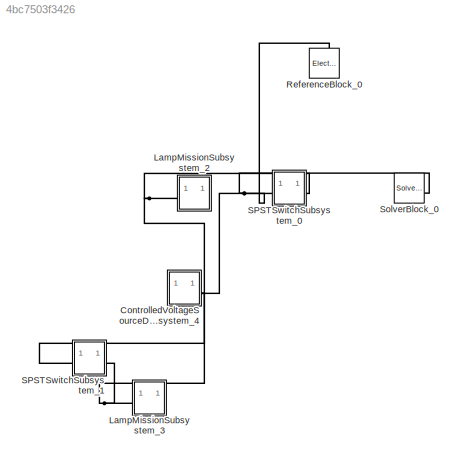
MODEL slx_4bc7503f3426
KIND model
CONFIG AbsTol = auto
CONFIG EnableMultiTasking = off
CONFIG FixedStep = auto
CONFIG MaxStep = auto
CONFIG MinStep = auto
CONFIG RelTol = 1e-3
CONFIG SampleTimeConstraint = Unconstrained
CONFIG SolverName = ode23t
CONFIG StartTime = 0.0
CONFIG StopTime = 100
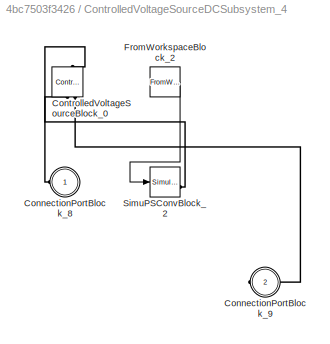
BLOCK [SubSystem] ControlledVoltageSourceDCSubsystem_4
BLOCK [PMIOPort] ControlledVoltageSourceDCSubsystem_4/ConnectionPortBlock_8
  Side = Left
BLOCK [PMIOPort] ControlledVoltageSourceDCSubsystem_4/ConnectionPortBlock_9
  Port = 2
  Side = Right
BLOCK [Reference] ControlledVoltageSourceDCSubsystem_4/ControlledVoltageSourceBlock_0  REF=fl_lib/Electrical/Electrical Sources/Controlled Voltage
Source
  NameLocation = right
  SourceBlock = fl_lib/Electrical/Electrical Sources/Controlled Voltage\nSource
  SourceType = Controlled Voltage\nSource
BLOCK [FromWorkspace] ControlledVoltageSourceDCSubsystem_4/FromWorkspaceBlock_2
  VariableName = Subsystem_4_ControlledVoltageSourceBlock_0_simin_0
BLOCK [Reference] ControlledVoltageSourceDCSubsystem_4/SimuPSConvBlock_2  REF=nesl_utility/Simulink-PS
Converter
  SourceBlock = nesl_utility/Simulink-PS\nConverter
  SourceType = Simulink-PS\nConverter
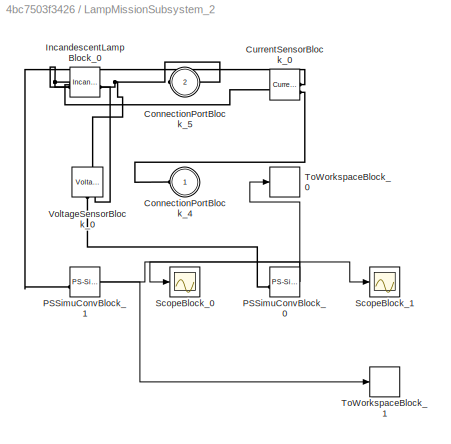
BLOCK [SubSystem] LampMissionSubsystem_2
BLOCK [PMIOPort] LampMissionSubsystem_2/ConnectionPortBlock_4
  Side = Left
BLOCK [PMIOPort] LampMissionSubsystem_2/ConnectionPortBlock_5
  Port = 2
  Side = Right
BLOCK [Reference] LampMissionSubsystem_2/CurrentSensorBlock_0  REF=fl_lib/Electrical/Electrical Sensors/Current Sensor
  LibrarySourceBlock = ee_lib/Sensors &\nTransducers/Current Sensor
  SourceBlock = fl_lib/Electrical/Electrical Sensors/Current Sensor
  SourceType = Current Sensor
BLOCK [Reference] LampMissionSubsystem_2/IncandescentLampBlock_0  REF=ee_lib/Passive/Incandescent Lamp
  SourceBlock = ee_lib/Passive/Incandescent Lamp
  SourceType = Incandescent Lamp
BLOCK [Reference] LampMissionSubsystem_2/PSSimuConvBlock_0  REF=nesl_utility/PS-Simulink
Converter
  SourceBlock = nesl_utility/PS-Simulink\nConverter
  SourceType = PS-Simulink\nConverter
BLOCK [Reference] LampMissionSubsystem_2/PSSimuConvBlock_1  REF=nesl_utility/PS-Simulink
Converter
  SourceBlock = nesl_utility/PS-Simulink\nConverter
  SourceType = PS-Simulink\nConverter
BLOCK [Scope] LampMissionSubsystem_2/ScopeBlock_0
  Floating = off
  NumInputPorts = 1
BLOCK [Scope] LampMissionSubsystem_2/ScopeBlock_1
  Floating = off
  NumInputPorts = 1
BLOCK [ToWorkspace] LampMissionSubsystem_2/ToWorkspaceBlock_0
  FixptAsFi = on
  MaxDataPoints = inf
  SaveFormat = Structure With Time
  VariableName = Subsystem_2_VoltageSensorBlock_0_simout_0
BLOCK [ToWorkspace] LampMissionSubsystem_2/ToWorkspaceBlock_1
  FixptAsFi = on
  MaxDataPoints = inf
  SaveFormat = Structure With Time
  VariableName = Subsystem_2_CurrentSensorBlock_0_simout_0
BLOCK [Reference] LampMissionSubsystem_2/VoltageSensorBlock_0  REF=fl_lib/Electrical/Electrical Sensors/Voltage Sensor
  LibrarySourceBlock = ee_lib/Sensors &\nTransducers/Voltage Sensor
  NameLocation = right
  SourceBlock = fl_lib/Electrical/Electrical Sensors/Voltage Sensor
  SourceType = Voltage Sensor
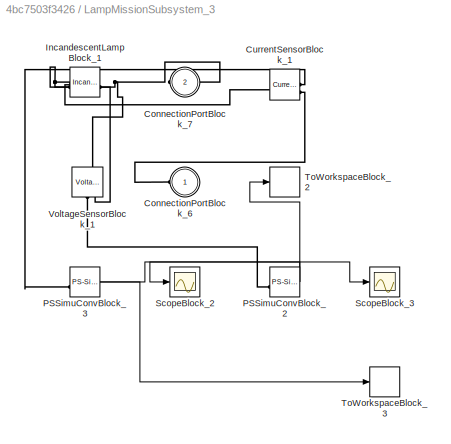
BLOCK [SubSystem] LampMissionSubsystem_3
BLOCK [PMIOPort] LampMissionSubsystem_3/ConnectionPortBlock_6
  Side = Left
BLOCK [PMIOPort] LampMissionSubsystem_3/ConnectionPortBlock_7
  Port = 2
  Side = Right
BLOCK [Reference] LampMissionSubsystem_3/CurrentSensorBlock_1  REF=fl_lib/Electrical/Electrical Sensors/Current Sensor
  LibrarySourceBlock = ee_lib/Sensors &\nTransducers/Current Sensor
  SourceBlock = fl_lib/Electrical/Electrical Sensors/Current Sensor
  SourceType = Current Sensor
BLOCK [Reference] LampMissionSubsystem_3/IncandescentLampBlock_1  REF=ee_lib/Passive/Incandescent Lamp
  SourceBlock = ee_lib/Passive/Incandescent Lamp
  SourceType = Incandescent Lamp
BLOCK [Reference] LampMissionSubsystem_3/PSSimuConvBlock_2  REF=nesl_utility/PS-Simulink
Converter
  SourceBlock = nesl_utility/PS-Simulink\nConverter
  SourceType = PS-Simulink\nConverter
BLOCK [Reference] LampMissionSubsystem_3/PSSimuConvBlock_3  REF=nesl_utility/PS-Simulink
Converter
  SourceBlock = nesl_utility/PS-Simulink\nConverter
  SourceType = PS-Simulink\nConverter
BLOCK [Scope] LampMissionSubsystem_3/ScopeBlock_2
  Floating = off
  NumInputPorts = 1
BLOCK [Scope] LampMissionSubsystem_3/ScopeBlock_3
  Floating = off
  NumInputPorts = 1
BLOCK [ToWorkspace] LampMissionSubsystem_3/ToWorkspaceBlock_2
  FixptAsFi = on
  MaxDataPoints = inf
  SaveFormat = Structure With Time
  VariableName = Subsystem_3_VoltageSensorBlock_1_simout_0
BLOCK [ToWorkspace] LampMissionSubsystem_3/ToWorkspaceBlock_3
  FixptAsFi = on
  MaxDataPoints = inf
  SaveFormat = Structure With Time
  VariableName = Subsystem_3_CurrentSensorBlock_1_simout_0
BLOCK [Reference] LampMissionSubsystem_3/VoltageSensorBlock_1  REF=fl_lib/Electrical/Electrical Sensors/Voltage Sensor
  LibrarySourceBlock = ee_lib/Sensors &\nTransducers/Voltage Sensor
  NameLocation = right
  SourceBlock = fl_lib/Electrical/Electrical Sensors/Voltage Sensor
  SourceType = Voltage Sensor
BLOCK [Reference] ReferenceBlock_0  REF=fl_lib/Electrical/Electrical Elements/Electrical Reference
  LibrarySourceBlock = ee_lib/Connectors &\nReferences/Electrical Reference
  NameLocation = right
  SourceBlock = fl_lib/Electrical/Electrical Elements/Electrical Reference
  SourceType = Electrical Reference
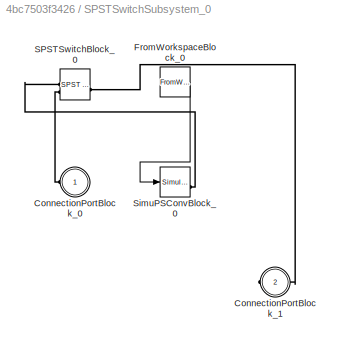
BLOCK [SubSystem] SPSTSwitchSubsystem_0
BLOCK [PMIOPort] SPSTSwitchSubsystem_0/ConnectionPortBlock_0
  Side = Left
BLOCK [PMIOPort] SPSTSwitchSubsystem_0/ConnectionPortBlock_1
  Port = 2
  Side = Right
BLOCK [FromWorkspace] SPSTSwitchSubsystem_0/FromWorkspaceBlock_0
  VariableName = Subsystem_0_SPSTSwitchBlock_0_simin_0
BLOCK [Reference] SPSTSwitchSubsystem_0/SPSTSwitchBlock_0  REF=ee_lib/Switches & Breakers/SPST Switch
  SourceBlock = ee_lib/Switches & Breakers/SPST Switch
  SourceType = SPST Switch
BLOCK [Reference] SPSTSwitchSubsystem_0/SimuPSConvBlock_0  REF=nesl_utility/Simulink-PS
Converter
  SourceBlock = nesl_utility/Simulink-PS\nConverter
  SourceType = Simulink-PS\nConverter
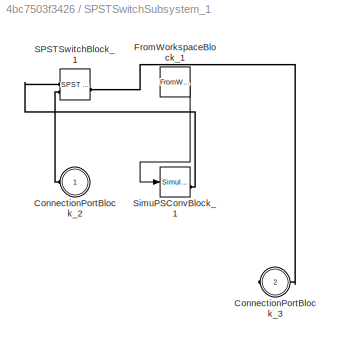
BLOCK [SubSystem] SPSTSwitchSubsystem_1
BLOCK [PMIOPort] SPSTSwitchSubsystem_1/ConnectionPortBlock_2
  Side = Left
BLOCK [PMIOPort] SPSTSwitchSubsystem_1/ConnectionPortBlock_3
  Port = 2
  Side = Right
BLOCK [FromWorkspace] SPSTSwitchSubsystem_1/FromWorkspaceBlock_1
  VariableName = Subsystem_1_SPSTSwitchBlock_1_simin_0
BLOCK [Reference] SPSTSwitchSubsystem_1/SPSTSwitchBlock_1  REF=ee_lib/Switches & Breakers/SPST Switch
  SourceBlock = ee_lib/Switches & Breakers/SPST Switch
  SourceType = SPST Switch
BLOCK [Reference] SPSTSwitchSubsystem_1/SimuPSConvBlock_1  REF=nesl_utility/Simulink-PS
Converter
  SourceBlock = nesl_utility/Simulink-PS\nConverter
  SourceType = Simulink-PS\nConverter
BLOCK [Reference] SolverBlock_0  REF=nesl_utility/Solver
Configuration
  SourceBlock = nesl_utility/Solver\nConfiguration
  SourceType = Solver\nConfiguration
LINE ControlledVoltageSourceDCSubsystem_4/FromWorkspaceBlock_2:1 -> ControlledVoltageSourceDCSubsystem_4/SimuPSConvBlock_2:1
NET LampMissionSubsystem_2/PSSimuConvBlock_0:1 -> LampMissionSubsystem_2/ScopeBlock_0:1, LampMissionSubsystem_2/ToWorkspaceBlock_0:1
NET LampMissionSubsystem_2/PSSimuConvBlock_1:1 -> LampMissionSubsystem_2/ScopeBlock_1:1, LampMissionSubsystem_2/ToWorkspaceBlock_1:1
NET LampMissionSubsystem_3/PSSimuConvBlock_2:1 -> LampMissionSubsystem_3/ScopeBlock_2:1, LampMissionSubsystem_3/ToWorkspaceBlock_2:1
NET LampMissionSubsystem_3/PSSimuConvBlock_3:1 -> LampMissionSubsystem_3/ScopeBlock_3:1, LampMissionSubsystem_3/ToWorkspaceBlock_3:1
LINE SPSTSwitchSubsystem_0/FromWorkspaceBlock_0:1 -> SPSTSwitchSubsystem_0/SimuPSConvBlock_0:1
LINE SPSTSwitchSubsystem_1/FromWorkspaceBlock_1:1 -> SPSTSwitchSubsystem_1/SimuPSConvBlock_1:1
PLINE ControlledVoltageSourceDCSubsystem_4/ConnectionPortBlock_8:RConn1 -- ControlledVoltageSourceDCSubsystem_4/ControlledVoltageSourceBlock_0:LConn1
PLINE ControlledVoltageSourceDCSubsystem_4/ConnectionPortBlock_9:RConn1 -- ControlledVoltageSourceDCSubsystem_4/ControlledVoltageSourceBlock_0:RConn2
PLINE ControlledVoltageSourceDCSubsystem_4/ControlledVoltageSourceBlock_0:RConn1 -- ControlledVoltageSourceDCSubsystem_4/SimuPSConvBlock_2:RConn1
PNET net1: ControlledVoltageSourceDCSubsystem_4:RConn1 -- LampMissionSubsystem_2:LConn1 -- LampMissionSubsystem_3:LConn1 -- ReferenceBlock_0:LConn1 -- SPSTSwitchSubsystem_0:LConn1 -- SPSTSwitchSubsystem_0:RConn1 -- SPSTSwitchSubsystem_1:LConn1 -- SPSTSwitchSubsystem_1:RConn1 -- SolverBlock_0:RConn1
PLINE LampMissionSubsystem_2/ConnectionPortBlock_4:RConn1 -- LampMissionSubsystem_2/CurrentSensorBlock_0:RConn2
PNET net2: LampMissionSubsystem_2/ConnectionPortBlock_5:RConn1 -- LampMissionSubsystem_2/IncandescentLampBlock_0:RConn1 -- LampMissionSubsystem_2/VoltageSensorBlock_0:LConn1
PNET net3: LampMissionSubsystem_2/CurrentSensorBlock_0:LConn1 -- LampMissionSubsystem_2/IncandescentLampBlock_0:LConn1 -- LampMissionSubsystem_2/VoltageSensorBlock_0:RConn2
PLINE LampMissionSubsystem_2/CurrentSensorBlock_0:RConn1 -- LampMissionSubsystem_2/PSSimuConvBlock_1:LConn1
PLINE LampMissionSubsystem_2/PSSimuConvBlock_0:LConn1 -- LampMissionSubsystem_2/VoltageSensorBlock_0:RConn1
PLINE LampMissionSubsystem_3/ConnectionPortBlock_6:RConn1 -- LampMissionSubsystem_3/CurrentSensorBlock_1:RConn2
PNET net4: LampMissionSubsystem_3/ConnectionPortBlock_7:RConn1 -- LampMissionSubsystem_3/IncandescentLampBlock_1:RConn1 -- LampMissionSubsystem_3/VoltageSensorBlock_1:LConn1
PNET net5: LampMissionSubsystem_3/CurrentSensorBlock_1:LConn1 -- LampMissionSubsystem_3/IncandescentLampBlock_1:LConn1 -- LampMissionSubsystem_3/VoltageSensorBlock_1:RConn2
PLINE LampMissionSubsystem_3/CurrentSensorBlock_1:RConn1 -- LampMissionSubsystem_3/PSSimuConvBlock_3:LConn1
PLINE LampMissionSubsystem_3/PSSimuConvBlock_2:LConn1 -- LampMissionSubsystem_3/VoltageSensorBlock_1:RConn1
PLINE SPSTSwitchSubsystem_0/ConnectionPortBlock_0:RConn1 -- SPSTSwitchSubsystem_0/SPSTSwitchBlock_0:LConn2
PLINE SPSTSwitchSubsystem_0/ConnectionPortBlock_1:RConn1 -- SPSTSwitchSubsystem_0/SPSTSwitchBlock_0:RConn1
PLINE SPSTSwitchSubsystem_0/SPSTSwitchBlock_0:LConn1 -- SPSTSwitchSubsystem_0/SimuPSConvBlock_0:RConn1
PLINE SPSTSwitchSubsystem_1/ConnectionPortBlock_2:RConn1 -- SPSTSwitchSubsystem_1/SPSTSwitchBlock_1:LConn2
PLINE SPSTSwitchSubsystem_1/ConnectionPortBlock_3:RConn1 -- SPSTSwitchSubsystem_1/SPSTSwitchBlock_1:RConn1
PLINE SPSTSwitchSubsystem_1/SPSTSwitchBlock_1:LConn1 -- SPSTSwitchSubsystem_1/SimuPSConvBlock_1:RConn1
note: NET lines group one-source signal fan-out (src -> all destinations, sorted); 1:1 wires keep LINE; PNET lines group multi-terminal physical nets as a canonical sorted terminal list (undirected conserving connections); 2-terminal nets keep the pairwise PLINE form
